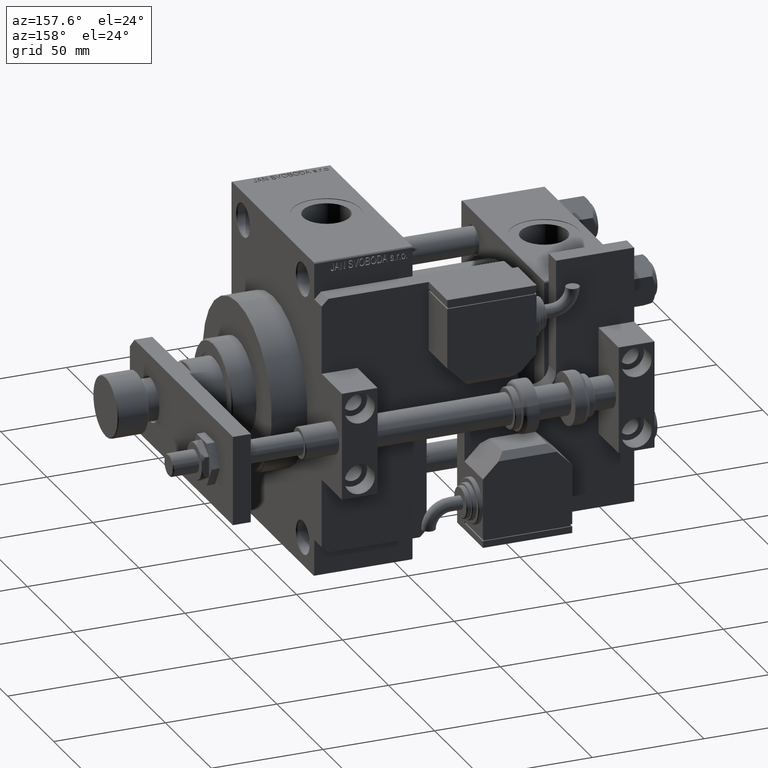
[diagram: clean part render]
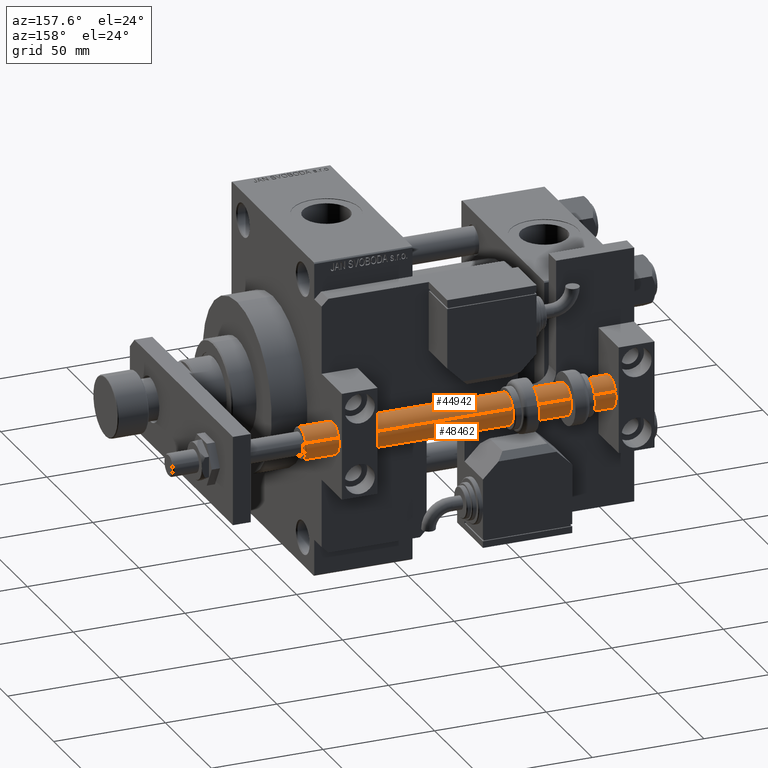
[diagram: same view with one multi-face feature highlighted, each face labeled with its STEP entity id]
A machine part, auxiliary view. The highlighted faces form ONE feature: a constant-radius fillet chain: 2 tangent blend faces with common blend radius 7 mm. The faces share edges in the B-rep.
Their STEP definitions:
[1] entity #44942 (Cylinder):
#348 = DIRECTION ( 'NONE',  ( 1.000000000000000000, 0.000000000000000000, 0.000000000000000000 ) ) ;
#819 = ORIENTED_EDGE ( 'NONE', *, *, #49710, .T. ) ;
#1880 = CARTESIAN_POINT ( 'NONE',  ( -7.000000000000000000, 0.000000000000000000, 155.0000000000000000 ) ) ;
#2147 = DIRECTION ( 'NONE',  ( -0.000000000000000000, -0.000000000000000000, -1.000000000000000000 ) ) ;
#3852 = CARTESIAN_POINT ( 'NONE',  ( 0.000000000000000000, 0.000000000000000000, 155.0000000000000000 ) ) ;
#5841 = VERTEX_POINT ( 'NONE', #36862 ) ;
#5987 = VERTEX_POINT ( 'NONE', #14964 ) ;
#6042 = DIRECTION ( 'NONE',  ( 1.000000000000000000, 0.000000000000000000, 0.000000000000000000 ) ) ;
#7267 = DIRECTION ( 'NONE',  ( -0.000000000000000000, -0.000000000000000000, -1.000000000000000000 ) ) ;
#7503 = ORIENTED_EDGE ( 'NONE', *, *, #34130, .F. ) ;
#7831 = VERTEX_POINT ( 'NONE', #12631 ) ;
#8989 = VECTOR ( 'NONE', #39253, 1000.000000000000000 ) ;
#12631 = CARTESIAN_POINT ( 'NONE',  ( 7.000000000000000000, 8.572527594031473190E-16, 0.3000000000000224709 ) ) ;
#13265 = AXIS2_PLACEMENT_3D ( 'NONE', #3852, #37068, #348 ) ;
#14964 = CARTESIAN_POINT ( 'NONE',  ( 7.000000000000000000, 8.572527594031473190E-16, 155.0000000000000000 ) ) ;
#15945 = CIRCLE ( 'NONE', #21963, 7.000000000000000000 ) ;
#19264 = CARTESIAN_POINT ( 'NONE',  ( 7.000000000000000000, 8.572527594031473190E-16, 155.0000000000000000 ) ) ;
#21963 = AXIS2_PLACEMENT_3D ( 'NONE', #25575, #42023, #6042 ) ;
#23323 = LINE ( 'NONE', #19264, #8989 ) ;
#23454 = CARTESIAN_POINT ( 'NONE',  ( -7.000000000000000000, 0.000000000000000000, 0.3000000000000224709 ) ) ;
#23758 = DIRECTION ( 'NONE',  ( -1.000000000000000000, 0.000000000000000000, 0.000000000000000000 ) ) ;
#23930 = ORIENTED_EDGE ( 'NONE', *, *, #43877, .F. ) ;
#25575 = CARTESIAN_POINT ( 'NONE',  ( 0.000000000000000000, 0.000000000000000000, 0.3000000000000224709 ) ) ;
#27815 = FACE_OUTER_BOUND ( 'NONE', #29463, .T. ) ;
#29463 = EDGE_LOOP ( 'NONE', ( #7503, #23930, #47506, #819 ) ) ;
#34130 = EDGE_CURVE ( 'NONE', #5987, #7831, #23323, .T. ) ;
#36862 = CARTESIAN_POINT ( 'NONE',  ( -7.000000000000000000, 0.000000000000000000, 155.0000000000000000 ) ) ;
#37068 = DIRECTION ( 'NONE',  ( 0.000000000000000000, 0.000000000000000000, 1.000000000000000000 ) ) ;
#39096 = VECTOR ( 'NONE', #2147, 1000.000000000000000 ) ;
#39133 = LINE ( 'NONE', #1880, #39096 ) ;
#39253 = DIRECTION ( 'NONE',  ( -0.000000000000000000, -0.000000000000000000, -1.000000000000000000 ) ) ;
#42023 = DIRECTION ( 'NONE',  ( -0.000000000000000000, -0.000000000000000000, 1.000000000000000000 ) ) ;
#43076 = EDGE_CURVE ( 'NONE', #5841, #47042, #39133, .T. ) ;
#43877 = EDGE_CURVE ( 'NONE', #5841, #5987, #51190, .T. ) ;
#44942 = ADVANCED_FACE ( 'NONE', ( #27815 ), #52367, .T. ) ;
#47042 = VERTEX_POINT ( 'NONE', #23454 ) ;
#47506 = ORIENTED_EDGE ( 'NONE', *, *, #43076, .T. ) ;
#48307 = CARTESIAN_POINT ( 'NONE',  ( 0.000000000000000000, 0.000000000000000000, 155.0000000000000000 ) ) ;
#49710 = EDGE_CURVE ( 'NONE', #47042, #7831, #15945, .T. ) ;
#50370 = AXIS2_PLACEMENT_3D ( 'NONE', #48307, #7267, #23758 ) ;
#51190 = CIRCLE ( 'NONE', #13265, 7.000000000000000000 ) ;
#52367 = CYLINDRICAL_SURFACE ( 'NONE', #50370, 7.000000000000000000 ) ;
[2] entity #48462 (Cylinder):
#229 = EDGE_CURVE ( 'NONE', #5987, #5841, #22098, .T. ) ;
#1789 = FACE_OUTER_BOUND ( 'NONE', #13423, .T. ) ;
#1880 = CARTESIAN_POINT ( 'NONE',  ( -7.000000000000000000, 0.000000000000000000, 155.0000000000000000 ) ) ;
#2147 = DIRECTION ( 'NONE',  ( -0.000000000000000000, -0.000000000000000000, -1.000000000000000000 ) ) ;
#2321 = EDGE_CURVE ( 'NONE', #7831, #47042, #36816, .T. ) ;
#5841 = VERTEX_POINT ( 'NONE', #36862 ) ;
#5987 = VERTEX_POINT ( 'NONE', #14964 ) ;
#7831 = VERTEX_POINT ( 'NONE', #12631 ) ;
#8989 = VECTOR ( 'NONE', #39253, 1000.000000000000000 ) ;
#12631 = CARTESIAN_POINT ( 'NONE',  ( 7.000000000000000000, 8.572527594031473190E-16, 0.3000000000000224709 ) ) ;
#13423 = EDGE_LOOP ( 'NONE', ( #27351, #30842, #19874, #47291 ) ) ;
#14964 = CARTESIAN_POINT ( 'NONE',  ( 7.000000000000000000, 8.572527594031473190E-16, 155.0000000000000000 ) ) ;
#16694 = CARTESIAN_POINT ( 'NONE',  ( 0.000000000000000000, 0.000000000000000000, 0.3000000000000224709 ) ) ;
#19264 = CARTESIAN_POINT ( 'NONE',  ( 7.000000000000000000, 8.572527594031473190E-16, 155.0000000000000000 ) ) ;
#19874 = ORIENTED_EDGE ( 'NONE', *, *, #2321, .T. ) ;
#22098 = CIRCLE ( 'NONE', #27290, 7.000000000000000000 ) ;
#22580 = CARTESIAN_POINT ( 'NONE',  ( 0.000000000000000000, 0.000000000000000000, 155.0000000000000000 ) ) ;
#23323 = LINE ( 'NONE', #19264, #8989 ) ;
#23454 = CARTESIAN_POINT ( 'NONE',  ( -7.000000000000000000, 0.000000000000000000, 0.3000000000000224709 ) ) ;
#23668 = AXIS2_PLACEMENT_3D ( 'NONE', #22580, #35787, #35012 ) ;
#26917 = CYLINDRICAL_SURFACE ( 'NONE', #23668, 7.000000000000000000 ) ;
#27290 = AXIS2_PLACEMENT_3D ( 'NONE', #46262, #41685, #33068 ) ;
#27351 = ORIENTED_EDGE ( 'NONE', *, *, #229, .F. ) ;
#27371 = AXIS2_PLACEMENT_3D ( 'NONE', #16694, #37492, #28331 ) ;
#28331 = DIRECTION ( 'NONE',  ( 1.000000000000000000, 0.000000000000000000, 0.000000000000000000 ) ) ;
#30842 = ORIENTED_EDGE ( 'NONE', *, *, #34130, .T. ) ;
#33068 = DIRECTION ( 'NONE',  ( 1.000000000000000000, 0.000000000000000000, 0.000000000000000000 ) ) ;
#34130 = EDGE_CURVE ( 'NONE', #5987, #7831, #23323, .T. ) ;
#35012 = DIRECTION ( 'NONE',  ( -1.000000000000000000, 0.000000000000000000, 0.000000000000000000 ) ) ;
#35787 = DIRECTION ( 'NONE',  ( -0.000000000000000000, -0.000000000000000000, -1.000000000000000000 ) ) ;
#36816 = CIRCLE ( 'NONE', #27371, 7.000000000000000000 ) ;
#36862 = CARTESIAN_POINT ( 'NONE',  ( -7.000000000000000000, 0.000000000000000000, 155.0000000000000000 ) ) ;
#37492 = DIRECTION ( 'NONE',  ( -0.000000000000000000, -0.000000000000000000, 1.000000000000000000 ) ) ;
#39096 = VECTOR ( 'NONE', #2147, 1000.000000000000000 ) ;
#39133 = LINE ( 'NONE', #1880, #39096 ) ;
#39253 = DIRECTION ( 'NONE',  ( -0.000000000000000000, -0.000000000000000000, -1.000000000000000000 ) ) ;
#41685 = DIRECTION ( 'NONE',  ( 0.000000000000000000, 0.000000000000000000, 1.000000000000000000 ) ) ;
#43076 = EDGE_CURVE ( 'NONE', #5841, #47042, #39133, .T. ) ;
#46262 = CARTESIAN_POINT ( 'NONE',  ( 0.000000000000000000, 0.000000000000000000, 155.0000000000000000 ) ) ;
#47042 = VERTEX_POINT ( 'NONE', #23454 ) ;
#47291 = ORIENTED_EDGE ( 'NONE', *, *, #43076, .F. ) ;
#48462 = ADVANCED_FACE ( 'NONE', ( #1789 ), #26917, .T. ) ;